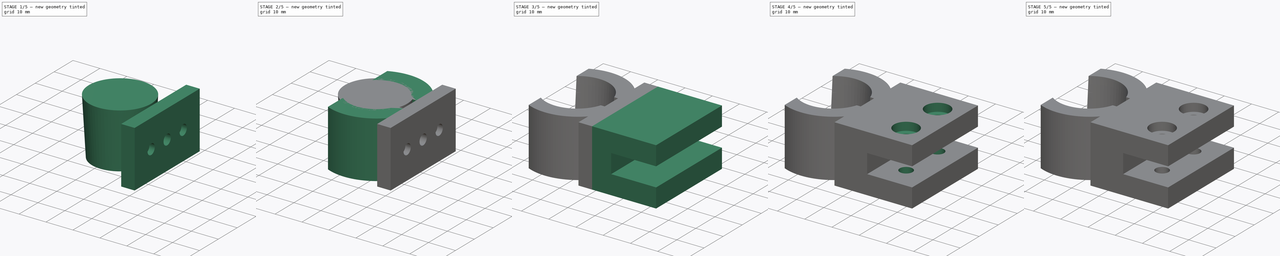
[diagram: build sequence overview — one tinted view per stage of 5, left to right]
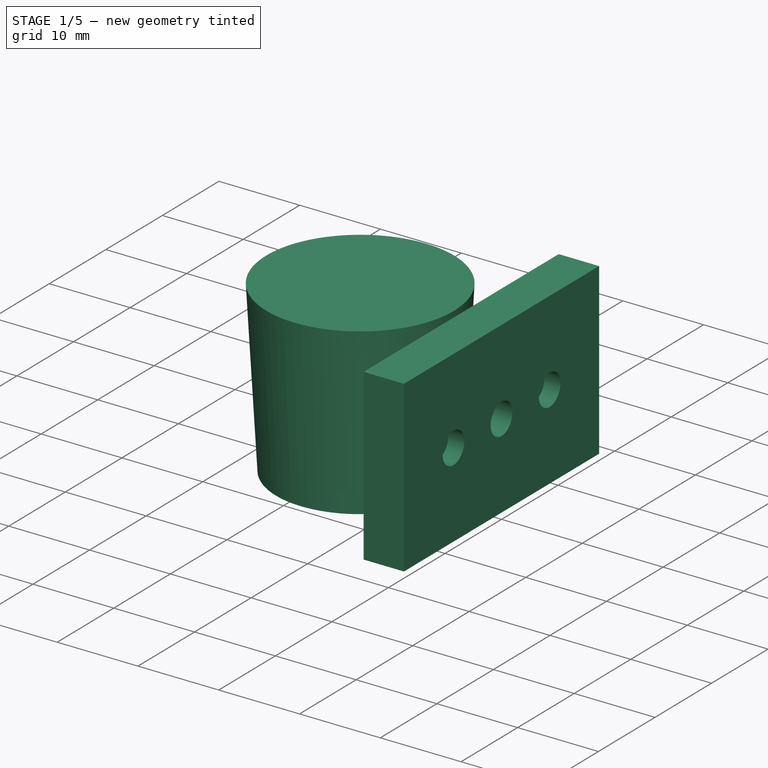
[diagram: stage 1 of 5 — iso view after this stage's code; geometry added in this stage tinted green]
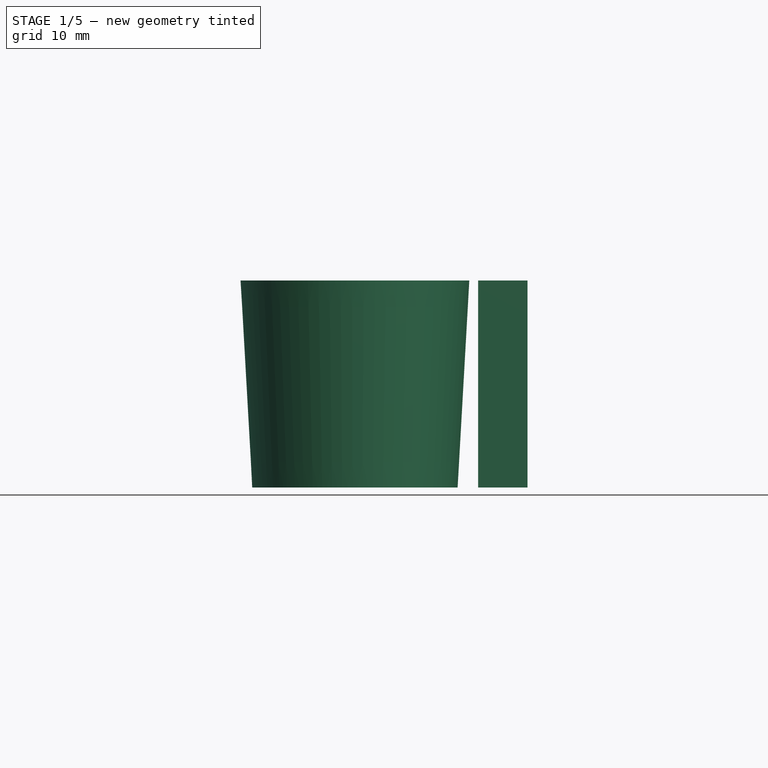
[diagram: stage 1 of 5 — front view after this stage's code; geometry added in this stage tinted green]
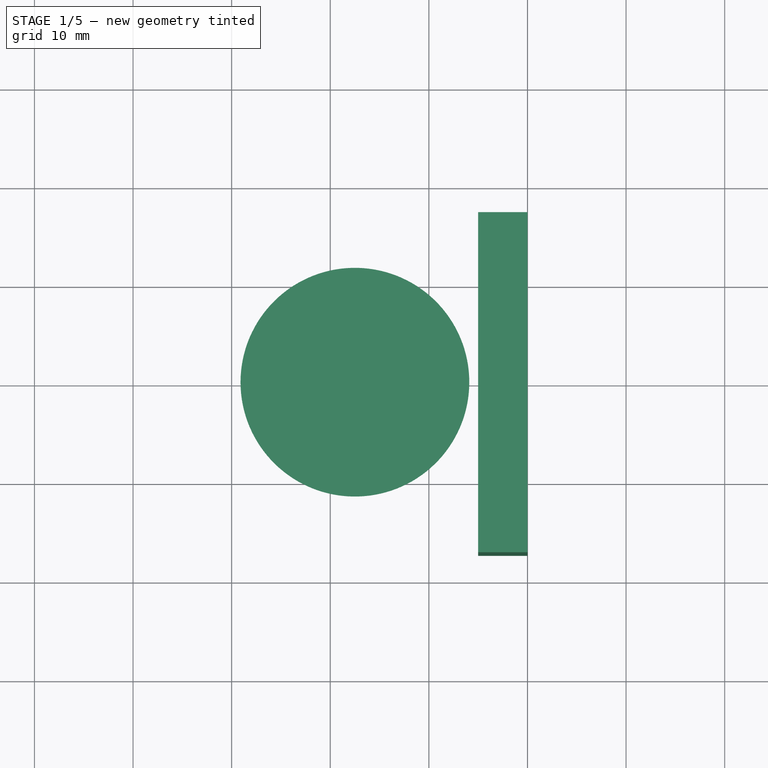
[diagram: stage 1 of 5 — top view after this stage's code; geometry added in this stage tinted green]
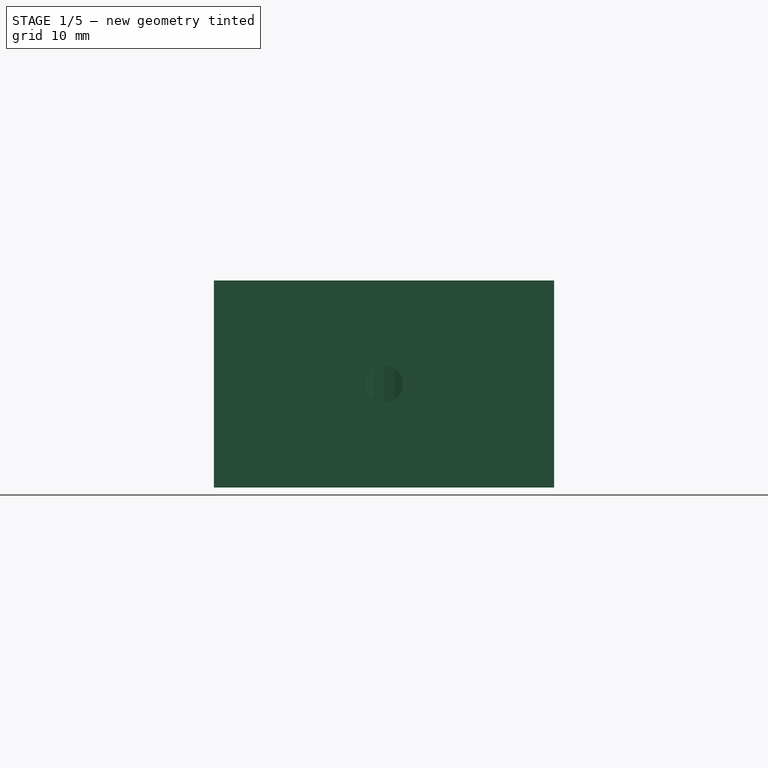
[diagram: stage 1 of 5 — right view after this stage's code; geometry added in this stage tinted green]
FCSTD DOCUMENT  (FreeCAD 0.16R)
Label: soporte ducha
License: All rights reserved
LicenseURL: http://en.wikipedia.org/wiki/All_rights_reserved
objects: Sketcher::SketchObject×13, PartDesign::Pocket×9, PartDesign::Pad×4, Part::Cone×1, Part::Cut×1
note: 41 computed .brp shape members not serialized (recipe doc carries the construction recipe); baked Part::Feature solids carry a one-line shape summary decoded from their .brp

FEATURE [Sketcher::SketchObject] Sketch007
  Placement = pos=(0,0,0) rot=(0.57735,0.57735,0.57735;2.0944rad)
  sketch-geometry (5):
    g0: LineSegment StartX=-17.25 StartY=0 StartZ=0 EndX=17.25 EndY=0 EndZ=0
    g1: LineSegment StartX=17.25 StartY=0 StartZ=0 EndX=17.25 EndY=21 EndZ=0
    g2: LineSegment StartX=17.25 StartY=21 StartZ=0 EndX=-17.25 EndY=21 EndZ=0
    g3: LineSegment StartX=-17.25 StartY=21 StartZ=0 EndX=-17.25 EndY=0 EndZ=0
    g4: Circle CenterX=0 CenterY=10.5 CenterZ=0 NormalX=0 NormalY=0 NormalZ=1 Radius=1.925
  constraints (15):
    c: Coincident(g0,g1)
    c: Coincident(g1,g2)
    c: Coincident(g2,g3)
    c: Coincident(g3,g0)
    c: Horizontal(g0)
    c: Horizontal(g2)
    c: Vertical(g1)
    c: Vertical(g3)
    c: PointOnObject(g0,g-1)
    c: DistanceX(g0,g0) = 34.5
    c: Symmetric(g0,g0,g-2)
    c: DistanceY(g0,g2) = 21
    c: PointOnObject(g4,g-2)
    c: DistanceY(g-1,g4) = 10.5
    c: Radius(g4) = 1.925
FEATURE [PartDesign::Pad] Pad001
  Length = 5
  Length2 = 100
  Placement = pos=(0,0,0) rot=(0.57735,0.57735,0.57735;2.0944rad)
  Reversed = true
  Sketch = -> Sketch007
  Type = 0
FEATURE [Sketcher::SketchObject] Sketch008
  Placement = pos=(0,0,0) rot=(0.57735,0.57735,0.57735;2.0944rad)
  Support = -> Pad001 [Face6]
  sketch-geometry (2):
    g0: Circle CenterX=-8.5 CenterY=10.5 CenterZ=0 NormalX=0 NormalY=0 NormalZ=1 Radius=1.925
    g1: Circle CenterX=8.5 CenterY=10.5 CenterZ=0 NormalX=0 NormalY=0 NormalZ=1 Radius=1.925
  constraints (5):
    c: Radius(g1) = 1.925
    c: Equal(g1,g0)
    c: Symmetric(g0,g1,g-2)
    c: DistanceX(g0,g1) = 17
    c: DistanceY(g-1,g0) = 10.5
FEATURE [PartDesign::Pocket] Pocket006
  Length = 2
  Placement = pos=(0,0,0) rot=(0.57735,0.57735,0.57735;2.0944rad)
  Sketch = -> Sketch008
  Type = 0
FEATURE [Part::Cone] Cone  label="Cono"
  Angle = 360
  Height = 21
  Placement = pos=(-17.5,0,0) rot=(0,0,1;0rad)
  Radius1 = 10.415
  Radius2 = 11.6
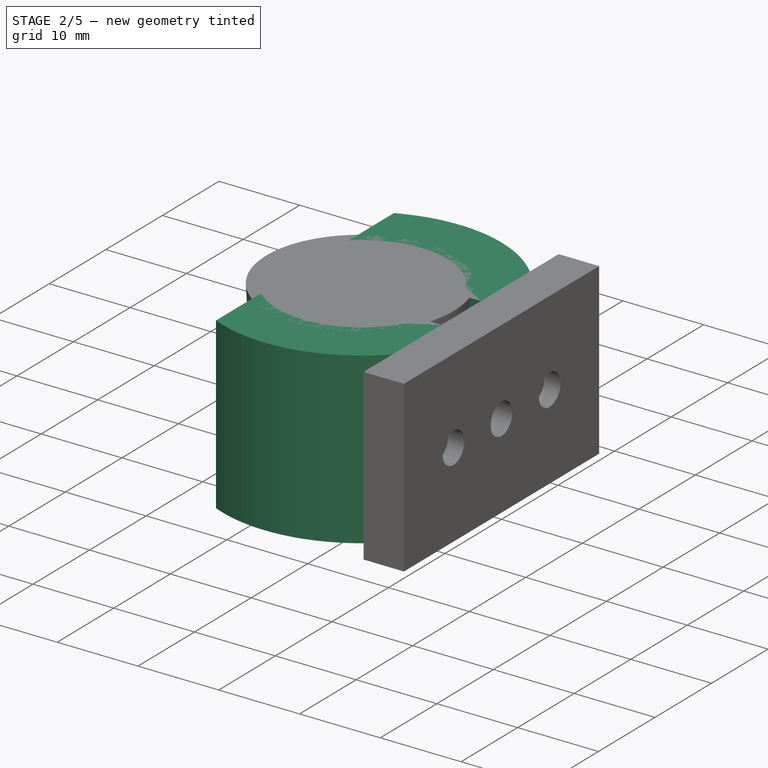
[diagram: stage 2 of 5 — iso view after this stage's code; geometry added in this stage tinted green]
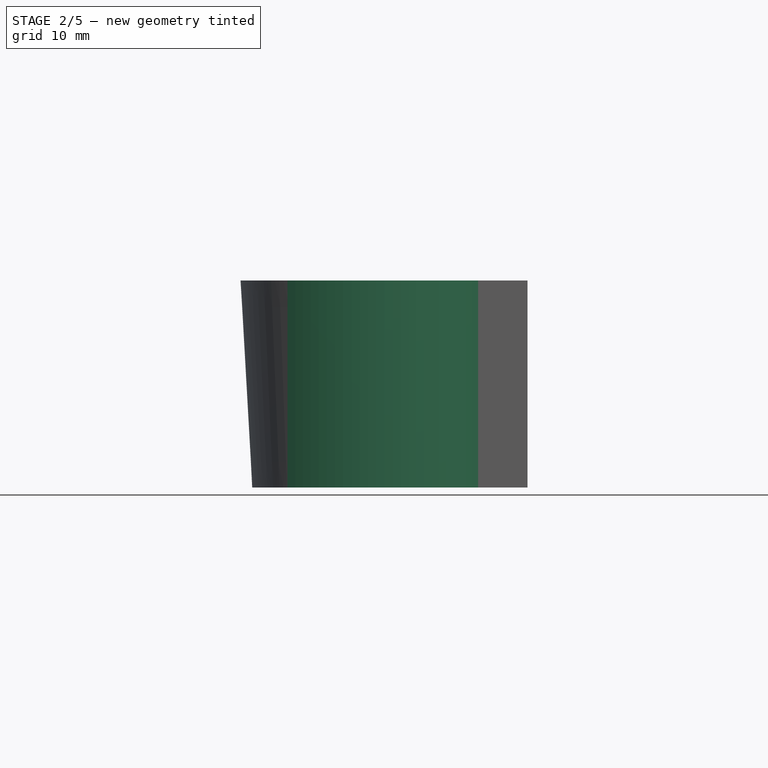
[diagram: stage 2 of 5 — front view after this stage's code; geometry added in this stage tinted green]
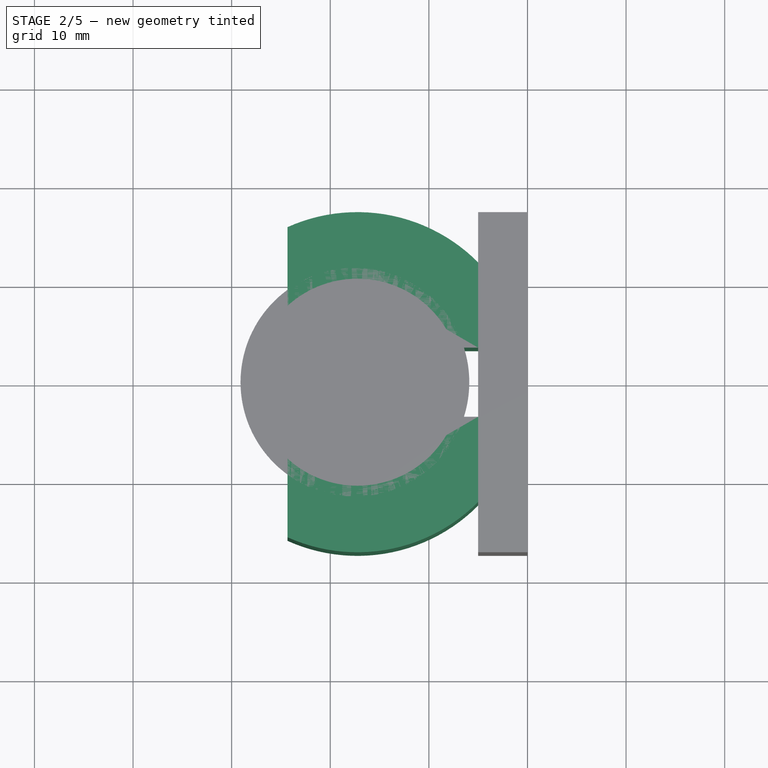
[diagram: stage 2 of 5 — top view after this stage's code; geometry added in this stage tinted green]
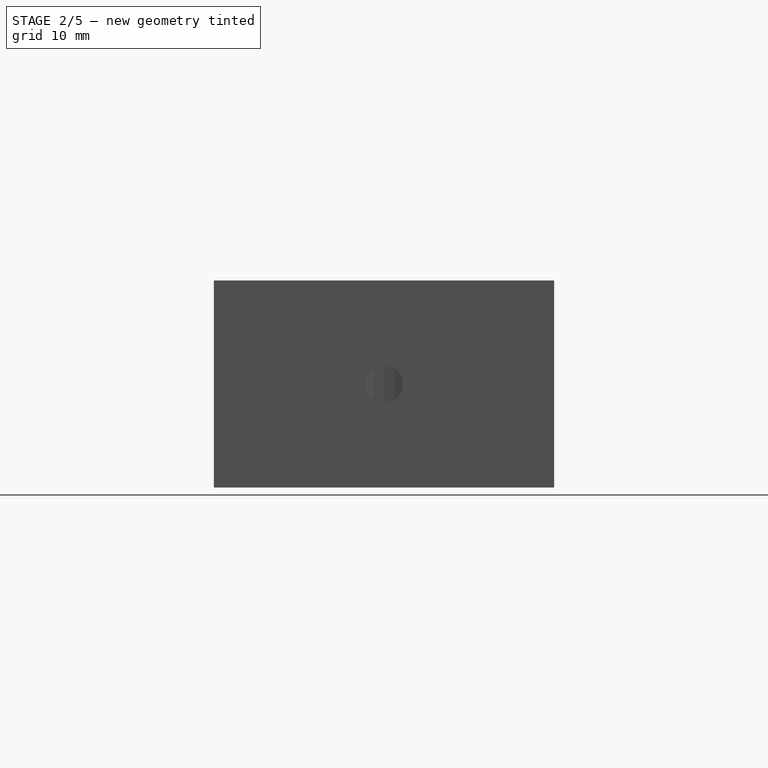
[diagram: stage 2 of 5 — right view after this stage's code; geometry added in this stage tinted green]
FEATURE [Sketcher::SketchObject] Sketch009
  Placement = pos=(0,0,21) rot=(0,0,-1;1.5708rad)
  Support = -> Pocket006 [Face6]
  sketch-geometry (8):
    g0: ArcOfCircle CenterX=0 CenterY=-17.25 CenterZ=0 NormalX=0 NormalY=0 NormalZ=1 Radius=17.25 StartAngle=5.85998 EndAngle=9.84799
    g1: ArcOfCircle CenterX=0 CenterY=-17.25 CenterZ=0 NormalX=0 NormalY=0 NormalZ=1 Radius=10.5 StartAngle=5.54263 EndAngle=7.51414
    g2: LineSegment StartX=-7.75 StartY=-24.3343 StartZ=0 EndX=-15.7281 EndY=-24.3345 EndZ=0
    g3: LineSegment StartX=7.75 StartY=-24.3343 StartZ=0 EndX=15.7282 EndY=-24.3343 EndZ=0
    g4: LineSegment StartX=3.5 StartY=-7.35051 StartZ=0 EndX=3.5 EndY=-4 EndZ=0
    g5: LineSegment StartX=3.5 StartY=-4 StartZ=0 EndX=-3.5 EndY=-4 EndZ=0
    g6: LineSegment StartX=-3.5 StartY=-4 StartZ=0 EndX=-3.5 EndY=-7.35051 EndZ=0
    g7: ArcOfCircle CenterX=0 CenterY=-17.25 CenterZ=0 NormalX=0 NormalY=0 NormalZ=1 Radius=10.5 StartAngle=1.91063 EndAngle=3.88215
  constraints (22):
    c: PointOnObject(g0,g-2)
    c: PointOnObject(g-1,g0)
    c: Radius(g0) = 17.25
    c: Coincident(g1,g0)
    c: Radius(g1) = 10.5
    c: Coincident(g2,g7)
    c: Coincident(g2,g0)
    c: Coincident(g3,g1)
    c: Coincident(g3,g0)
    c: Horizontal(g3)
    c: Coincident(g4,g5)
    c: Coincident(g5,g6)
    c: Horizontal(g5)
    c: Vertical(g4)
    c: Vertical(g6)
    c: Equal(g1,g7)
    c: Coincident(g1,g7)
    c: Coincident(g6,g7)
    c: Coincident(g4,g1)
    c: DistanceX(g5,g4) = 7
    c: Symmetric(g4,g5,g-2)
    c: DistanceY(g4,g-1) = 4
FEATURE [PartDesign::Pad] Pad002
  Length = 21
  Length2 = 100
  Placement = pos=(0,0,0) rot=(0.57735,0.57735,0.57735;2.0944rad)
  Reversed = true
  Sketch = -> Sketch009
  Type = 0
FEATURE [Sketcher::SketchObject] Sketch010
  ExternalGeometry = -> [Pad002]
  Placement = pos=(0,0,0) rot=(0.57735,0.57735,0.57735;2.0944rad)
  Support = -> Pad002 [Face18]
  sketch-geometry (2):
    g0: Circle CenterX=-8.5 CenterY=10.5 CenterZ=0 NormalX=0 NormalY=0 NormalZ=1 Radius=1.925
    g1: Circle CenterX=8.5 CenterY=10.5 CenterZ=0 NormalX=0 NormalY=0 NormalZ=1 Radius=1.925
  constraints (4):
    c: Coincident(g0,g-4)
    c: Coincident(g-3,g1)
    c: Equal(g-3,g1)
    c: Equal(g-4,g0)
FEATURE [PartDesign::Pocket] Pocket007
  Length = 2
  Placement = pos=(0,0,0) rot=(0.57735,0.57735,0.57735;2.0944rad)
  Sketch = -> Sketch010
  Type = 0
FEATURE [Sketcher::SketchObject] Sketch011
  ExternalGeometry = -> [Pocket007]
  Placement = pos=(0,0,0) rot=(0.57735,0.57735,0.57735;2.0944rad)
  Support = -> Pocket007 [Face4]
  sketch-geometry (1):
    g0: Circle CenterX=0 CenterY=10.5 CenterZ=0 NormalX=0 NormalY=0 NormalZ=1 Radius=1.925
  constraints (2):
    c: Coincident(g0,g-3)
    c: Equal(g-3,g0)
FEATURE [PartDesign::Pocket] Pocket008  label="Soporte Ducha Telefono"
  Length = 5
  Placement = pos=(0,0,0) rot=(0.57735,0.57735,0.57735;2.0944rad)
  Sketch = -> Sketch011
  Type = 1
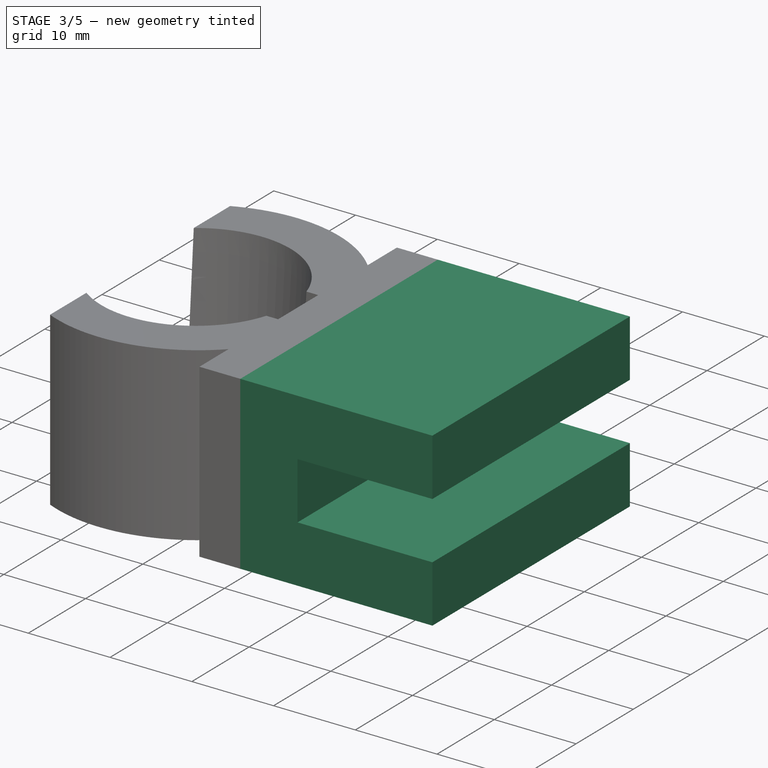
[diagram: stage 3 of 5 — iso view after this stage's code; geometry added in this stage tinted green]
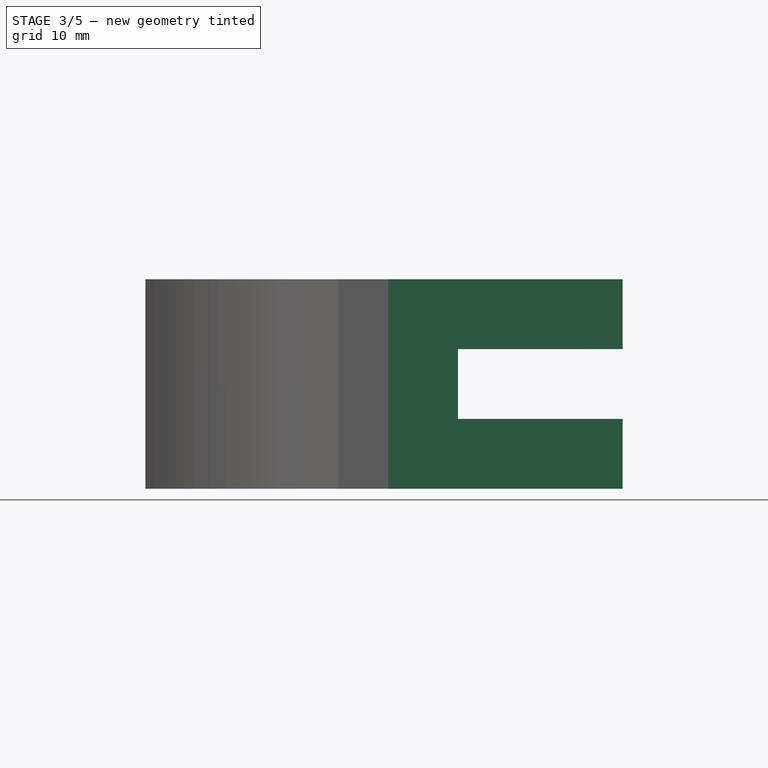
[diagram: stage 3 of 5 — front view after this stage's code; geometry added in this stage tinted green]
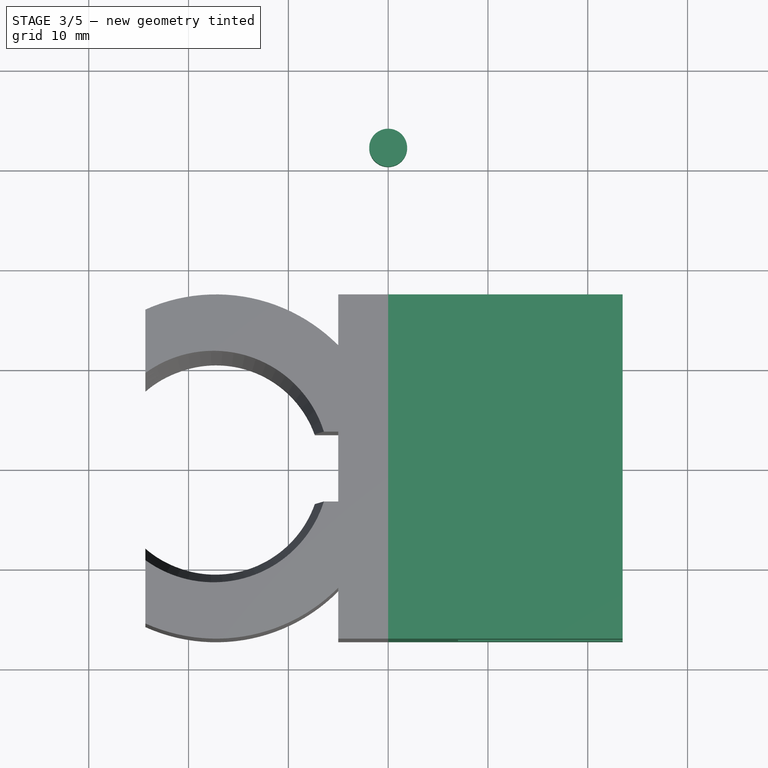
[diagram: stage 3 of 5 — top view after this stage's code; geometry added in this stage tinted green]
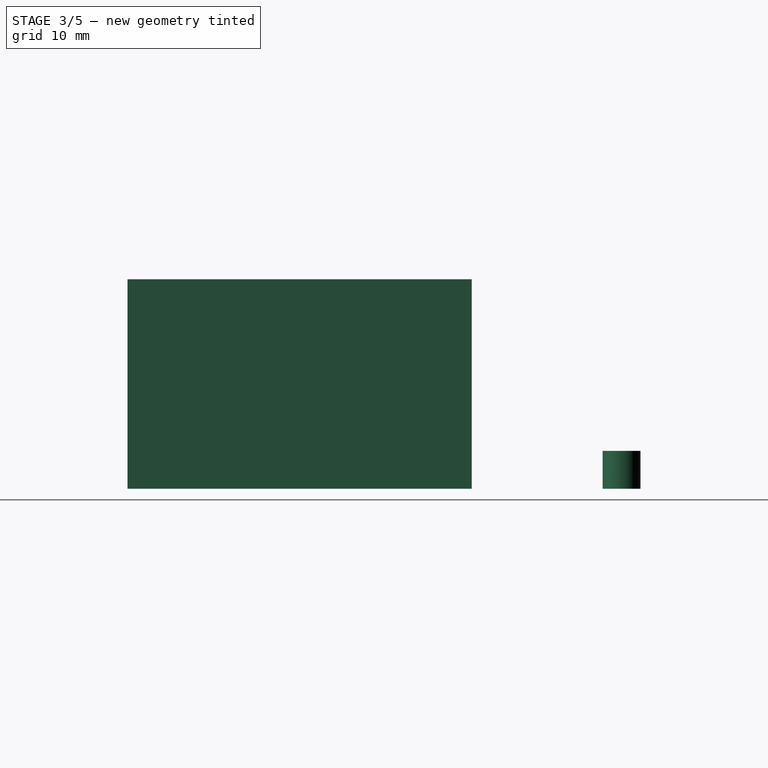
[diagram: stage 3 of 5 — right view after this stage's code; geometry added in this stage tinted green]
FEATURE [Sketcher::SketchObject] Sketch
  Placement = pos=(0,0,0) rot=(-1,0,0;4.71239rad)
  sketch-geometry (9):
    g0: LineSegment StartX=0 StartY=0 StartZ=0 EndX=23.5 EndY=0 EndZ=0
    g1: LineSegment StartX=23.5 StartY=0 StartZ=0 EndX=23.5 EndY=7 EndZ=0
    g2: LineSegment StartX=23.5 StartY=7 StartZ=0 EndX=7 EndY=7 EndZ=0
    g3: LineSegment StartX=7 StartY=7 StartZ=0 EndX=7 EndY=14 EndZ=0
    g4: LineSegment StartX=0 StartY=0 StartZ=0 EndX=0 EndY=21 EndZ=0
    g5: LineSegment StartX=0 StartY=21 StartZ=0 EndX=23.5 EndY=21 EndZ=0
    g6: LineSegment StartX=23.5 StartY=21 StartZ=0 EndX=23.5 EndY=14 EndZ=0
    g7: LineSegment StartX=23.5 StartY=14 StartZ=0 EndX=7 EndY=14 EndZ=0
    g8: LineSegment [constr] StartX=17.1683 StartY=21 StartZ=0 EndX=17.1683 EndY=3 EndZ=0
  constraints (26):
    c: Coincident(g-1,g0)
    c: PointOnObject(g0,g-1)
    c: Coincident(g0,g1)
    c: Coincident(g1,g2)
    c: Horizontal(g2)
    c: Coincident(g2,g3)
    c: Vertical(g3)
    c: Coincident(g-1,g4)
    c: Vertical(g4)
    c: Coincident(g4,g5)
    c: Horizontal(g5)
    c: Coincident(g5,g6)
    c: Vertical(g6)
    c: Coincident(g6,g7)
    c: Coincident(g3,g7)
    c: Horizontal(g7)
    c: DistanceX(g5,g5) = 23.5
    c: DistanceX(g4,g3) = 7
    c: Equal(g6,g1)
    c: DistanceY(g0,g1) = 7
    c: DistanceY(g-1,g4) = 21
    c: Equal(g5,g0)
    c: Vertical(g1)
    c: PointOnObject(g8,g5)
    c: Vertical(g8)
    c: DistanceY(g8,g8) = 18
FEATURE [PartDesign::Pad] Pad
  Length = 34.5
  Length2 = 100
  Midplane = true
  Placement = pos=(0,0,0) rot=(-1,0,0;4.71239rad)
  Sketch = -> Sketch
  Type = 0
FEATURE [Sketcher::SketchObject] Sketch012
  Placement = pos=(0,-10,0) rot=(0,0,1;0rad)
  sketch-geometry (1):
    g0: Circle CenterX=0 CenterY=42.257 CenterZ=0 NormalX=0 NormalY=0 NormalZ=1 Radius=1.9
  constraints (1):
    c: PointOnObject(g0,g-2)
FEATURE [PartDesign::Pad] Pad003  label="Pernos union"
  Length = 3.8
  Length2 = 100
  Placement = pos=(0,-10,0) rot=(0,0,1;0rad)
  Sketch = -> Sketch012
  Type = 0
FEATURE [Part::Cut] Cut  label="Soporte Ducha Telefono cono"
  Base = -> Pocket008
  Tool = -> Cone
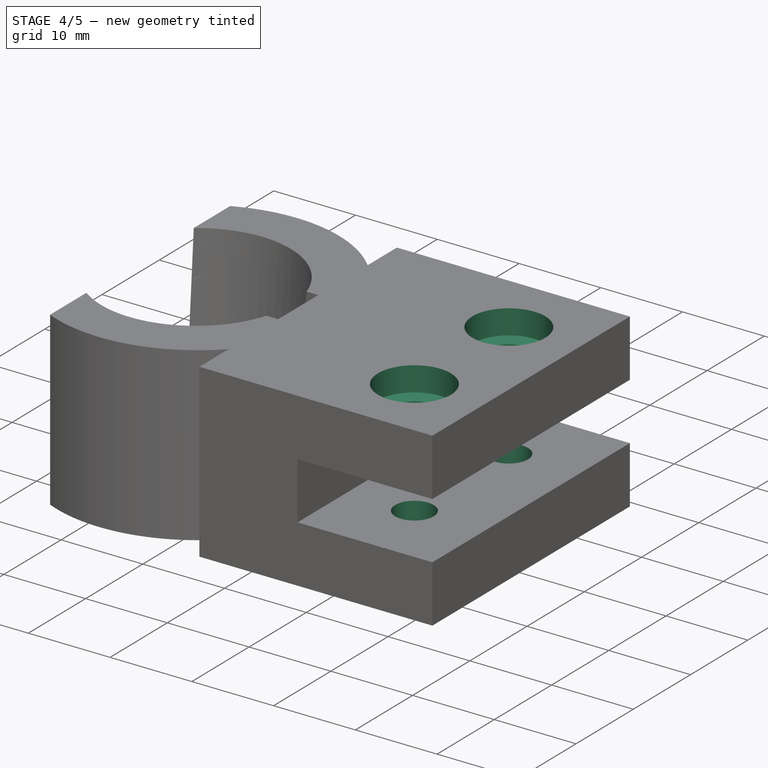
[diagram: stage 4 of 5 — iso view after this stage's code; geometry added in this stage tinted green]
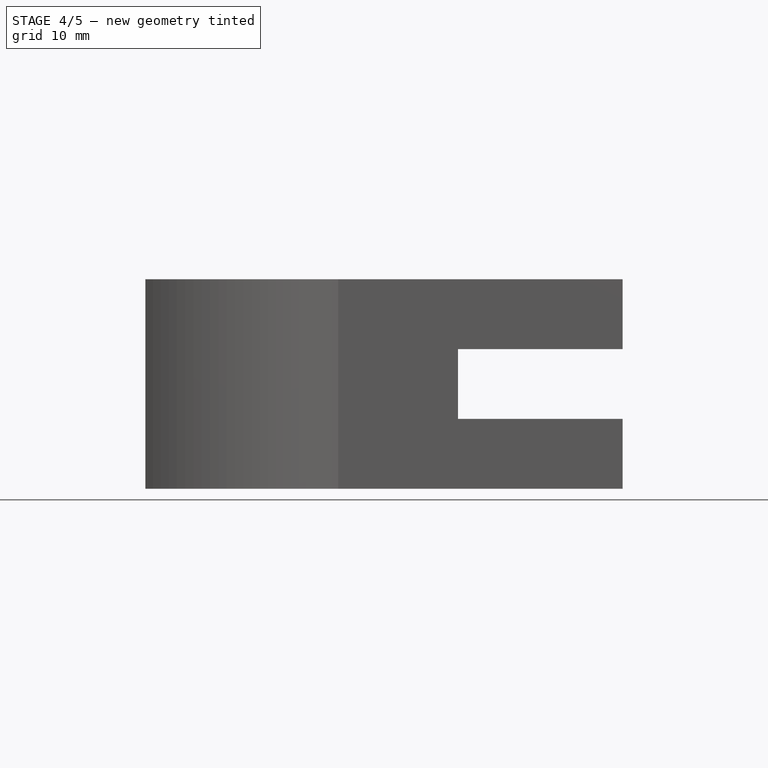
[diagram: stage 4 of 5 — front view after this stage's code; geometry added in this stage tinted green]
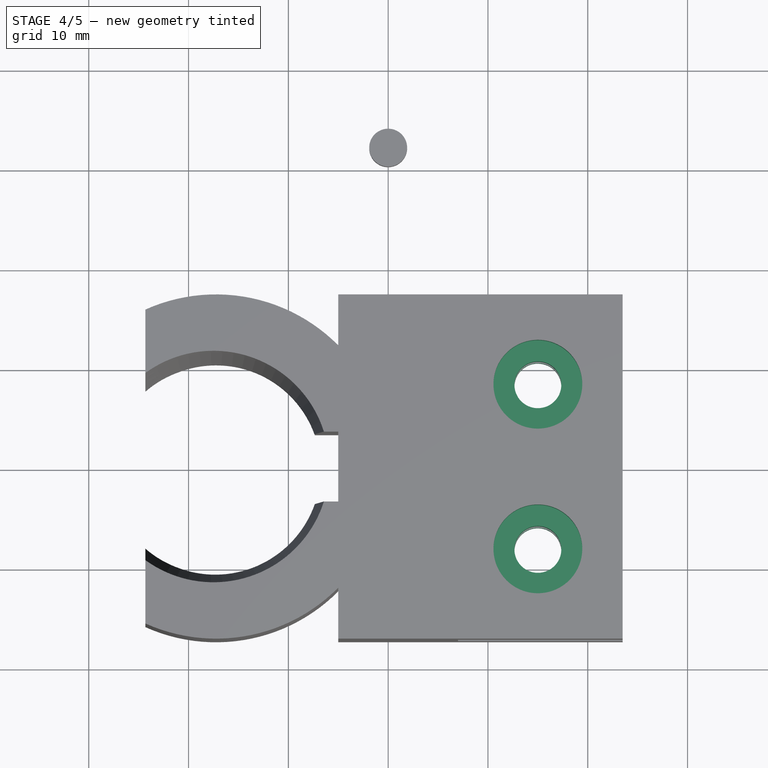
[diagram: stage 4 of 5 — top view after this stage's code; geometry added in this stage tinted green]
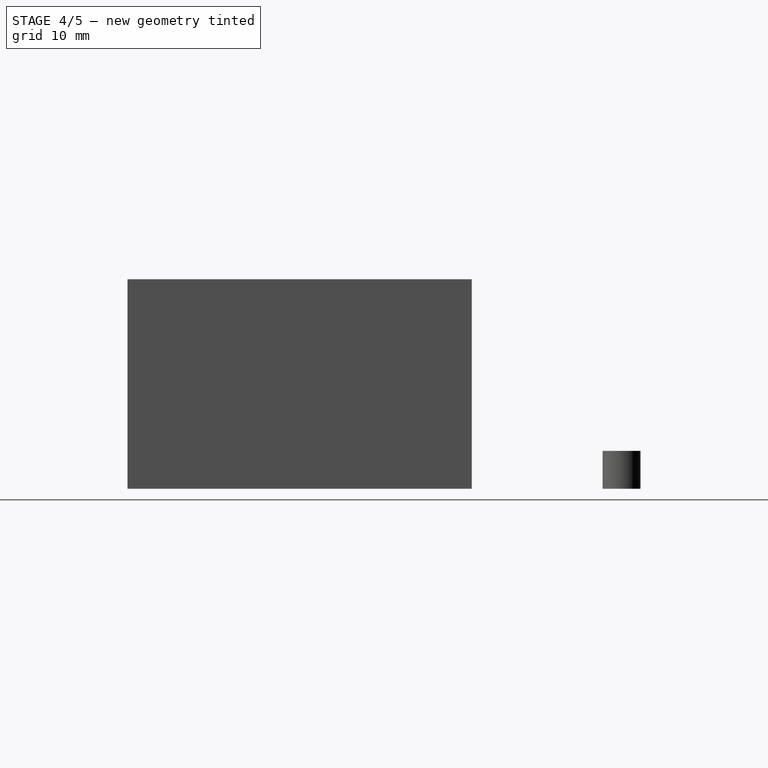
[diagram: stage 4 of 5 — right view after this stage's code; geometry added in this stage tinted green]
FEATURE [Sketcher::SketchObject] Sketch001
  ExternalGeometry = -> [Pad]
  Placement = pos=(0,0,21) rot=(0,0,1;3.14159rad)
  Support = -> Pad [Face7]
  sketch-geometry (2):
    g0: Circle CenterX=-15 CenterY=8.25 CenterZ=0 NormalX=0 NormalY=0 NormalZ=1 Radius=2.35
    g1: Circle CenterX=-15 CenterY=-8.25 CenterZ=0 NormalX=0 NormalY=0 NormalZ=1 Radius=2.35
  constraints (6):
    c: Radius(g0) = 2.35
    c: Equal(g0,g1)
    c: Symmetric(g0,g1,g-1)
    c: DistanceX(g-4,g-4) = 16.5
    c: DistanceX(g-3,g0) = 8.5
    c: DistanceY(g0,g-3) = 9
FEATURE [PartDesign::Pocket] Pocket
  Length = 5
  Placement = pos=(0,0,0) rot=(-1,0,0;4.71239rad)
  Sketch = -> Sketch001
  Type = 1
FEATURE [Sketcher::SketchObject] Sketch002
  ExternalGeometry = -> [Pocket]
  Placement = pos=(0,0,0) rot=(1,0,0;3.14159rad)
  Support = -> Pocket [Face1]
  sketch-geometry (14):
    g0: LineSegment StartX=15 StartY=12.75 StartZ=0 EndX=11.1029 EndY=10.5 EndZ=0
    g1: LineSegment StartX=11.1029 StartY=10.5 StartZ=0 EndX=11.1029 EndY=6 EndZ=0
    g2: LineSegment StartX=11.1029 StartY=6 StartZ=0 EndX=15 EndY=3.75 EndZ=0
    g3: LineSegment StartX=15 StartY=3.75 StartZ=0 EndX=18.8971 EndY=6 EndZ=0
    g4: LineSegment StartX=18.8971 StartY=6 StartZ=0 EndX=18.8971 EndY=10.5 EndZ=0
    g5: LineSegment StartX=18.8971 StartY=10.5 StartZ=0 EndX=15 EndY=12.75 EndZ=0
    g6: Circle [constr] CenterX=15 CenterY=8.25 CenterZ=0 NormalX=0 NormalY=0 NormalZ=1 Radius=4.5
    g7: LineSegment StartX=15 StartY=-3.75 StartZ=0 EndX=11.1029 EndY=-6 EndZ=0
    g8: LineSegment StartX=11.1029 StartY=-6 StartZ=0 EndX=11.1029 EndY=-10.5 EndZ=0
    g9: LineSegment StartX=11.1029 StartY=-10.5 StartZ=0 EndX=15 EndY=-12.75 EndZ=0
    g10: LineSegment StartX=15 StartY=-12.75 StartZ=0 EndX=18.8971 EndY=-10.5 EndZ=0
    g11: LineSegment StartX=18.8971 StartY=-10.5 StartZ=0 EndX=18.8971 EndY=-6 EndZ=0
    g12: LineSegment StartX=18.8971 StartY=-6 StartZ=0 EndX=15 EndY=-3.75 EndZ=0
    g13: Circle [constr] CenterX=15 CenterY=-8.25 CenterZ=0 NormalX=0 NormalY=0 NormalZ=1 Radius=4.5
  constraints (32):
    c: Coincident(g0,g1)
    c: Coincident(g1,g2)
    c: Coincident(g2,g3)
    c: Coincident(g3,g4)
    c: Coincident(g4,g5)
    c: Coincident(g5,g0)
    c: Equal(g0, g1-g5) x5
    c: PointOnObject(g0,g6)
    c: PointOnObject(g1,g6)
    c: PointOnObject(g2,g6)
    c: PointOnObject(g3,g6)
    c: PointOnObject(g4,g6)
    c: PointOnObject(g5,g6)
    c: Coincident(g6,g-3)
    c: Coincident(g7,g8)
    c: Coincident(g8,g9)
    c: Coincident(g9,g10)
    c: Coincident(g10,g11)
    c: Coincident(g11,g12)
    c: Coincident(g12,g7)
    c: Equal(g7, g8-g12) x5
    c: PointOnObject(g7,g13)
    c: PointOnObject(g8,g13)
    c: PointOnObject(g9,g13)
    c: PointOnObject(g10,g13)
    c: PointOnObject(g11,g13)
    c: PointOnObject(g12,g13)
    c: Coincident(g13,g-4)
    c: Equal(g13,g6)
    c: Radius(g13) = 4.5
    c: Parallel(g8,g-2)
    c: Parallel(g1,g-2)
FEATURE [PartDesign::Pocket] Pocket001
  Length = 3.9
  Placement = pos=(0,0,0) rot=(-1,0,0;4.71239rad)
  Sketch = -> Sketch002
  Type = 0
FEATURE [Sketcher::SketchObject] Sketch003
  ExternalGeometry = -> [Pocket001]
  Placement = pos=(0,0,21) rot=(0,0,1;3.14159rad)
  Support = -> Pocket001 [Face18]
  sketch-geometry (2):
    g0: Circle CenterX=-15 CenterY=8.25 CenterZ=0 NormalX=0 NormalY=0 NormalZ=1 Radius=4.45
    g1: Circle CenterX=-15 CenterY=-8.25 CenterZ=0 NormalX=0 NormalY=0 NormalZ=1 Radius=4.45
  constraints (4):
    c: Coincident(g0,g-3)
    c: Coincident(g1,g-4)
    c: Radius(g1) = 4.45
    c: Equal(g1,g0)
FEATURE [PartDesign::Pocket] Pocket002
  Length = 3
  Placement = pos=(0,0,0) rot=(-1,0,0;4.71239rad)
  Sketch = -> Sketch003
  Type = 0
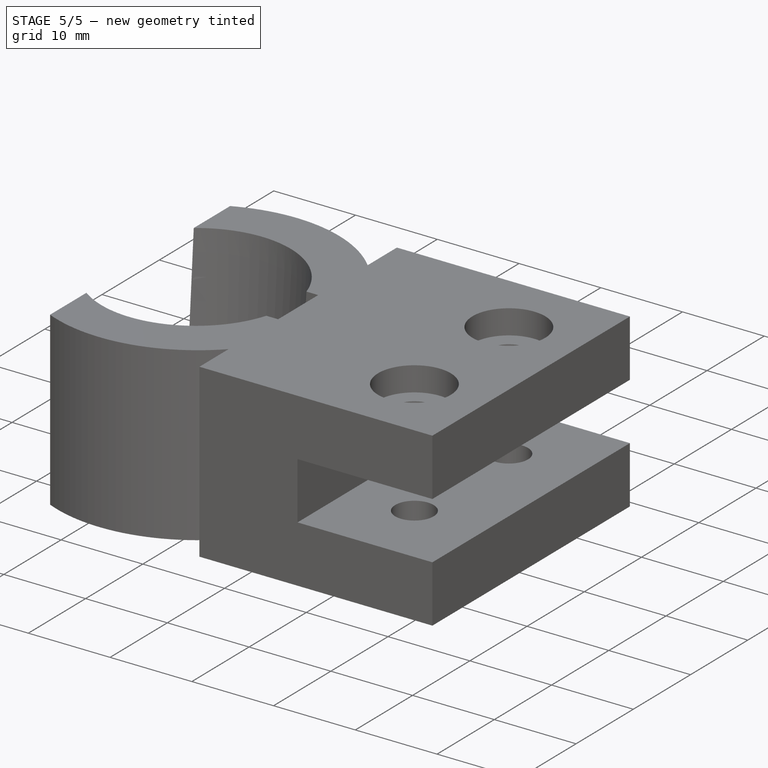
[diagram: stage 5 of 5 — iso view after this stage's code; geometry added in this stage tinted green]
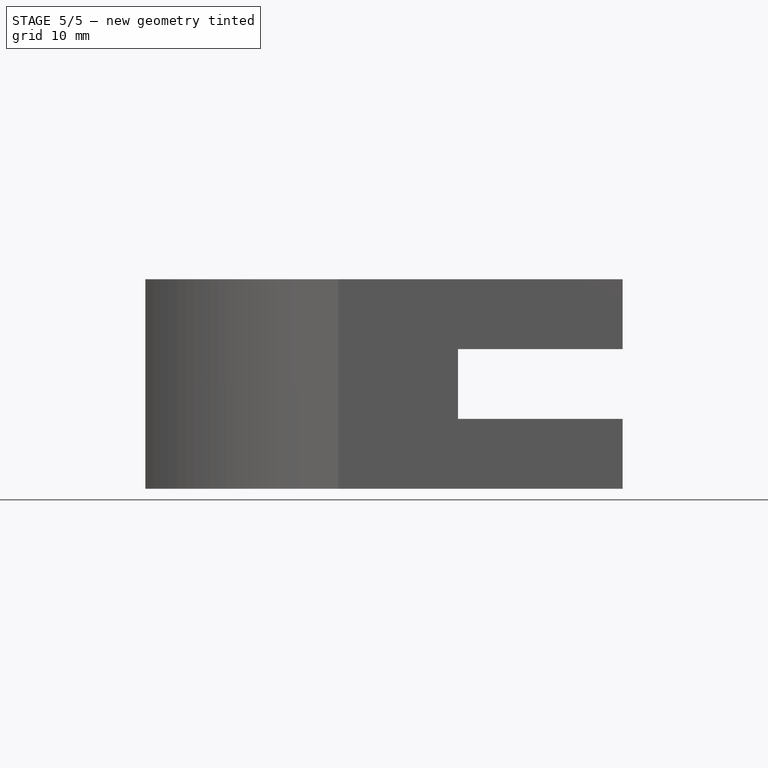
[diagram: stage 5 of 5 — front view after this stage's code; geometry added in this stage tinted green]
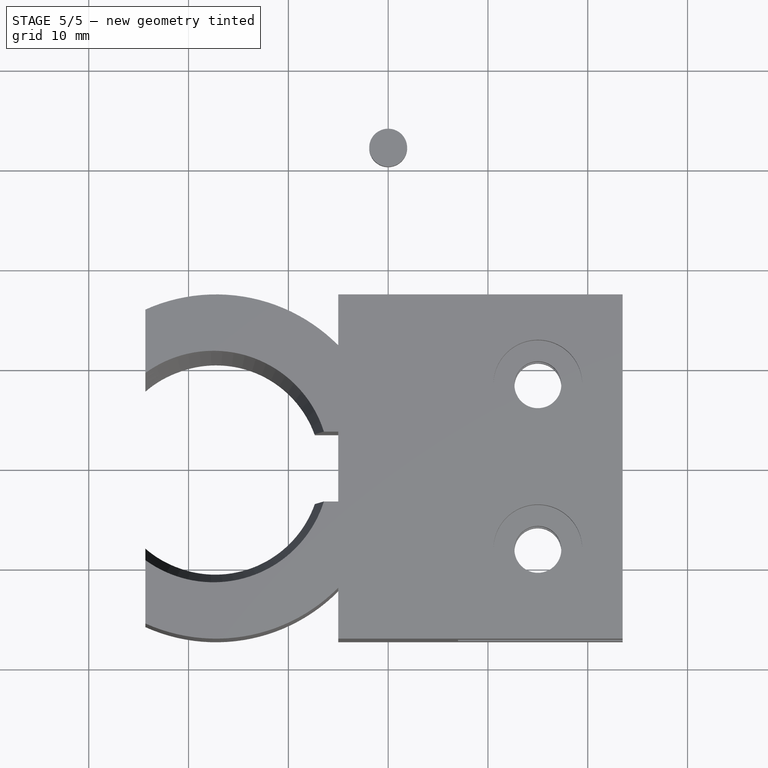
[diagram: stage 5 of 5 — top view after this stage's code; geometry added in this stage tinted green]
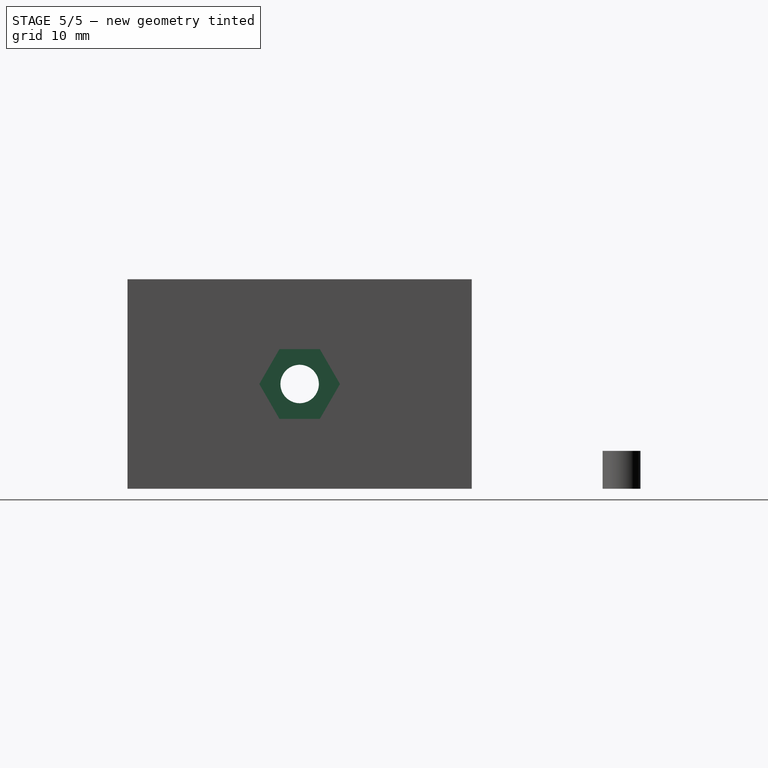
[diagram: stage 5 of 5 — right view after this stage's code; geometry added in this stage tinted green]
FEATURE [Sketcher::SketchObject] Sketch004
  ExternalGeometry = -> [Pocket002]
  Placement = pos=(0,0,0) rot=(0.707107,0,-0.707107;3.14159rad)
  Support = -> Pocket002 [Face2]
  sketch-geometry (1):
    g0: Circle CenterX=-10.5 CenterY=0 CenterZ=0 NormalX=0 NormalY=0 NormalZ=1 Radius=1.925
  constraints (2):
    c: Radius(g0) = 1.925
    c: PointOnObject(g0,g-1)
FEATURE [PartDesign::Pocket] Pocket003
  Length = 7
  Placement = pos=(0,0,0) rot=(-1,0,0;4.71239rad)
  Sketch = -> Sketch004
  Type = 1
FEATURE [Sketcher::SketchObject] Sketch005
  ExternalGeometry = -> [Pocket003]
  Placement = pos=(7,0,0) rot=(0.707107,0,0.707107;3.14159rad)
  Support = -> Pocket003 [Face21]
  sketch-geometry (7):
    g0: LineSegment StartX=7 StartY=2.02073 StartZ=0 EndX=7 EndY=-2.02073 EndZ=0
    g1: LineSegment StartX=7 StartY=-2.02073 StartZ=0 EndX=10.5 EndY=-4.04145 EndZ=0
    g2: LineSegment StartX=10.5 StartY=-4.04145 StartZ=0 EndX=14 EndY=-2.02073 EndZ=0
    g3: LineSegment StartX=14 StartY=-2.02073 StartZ=0 EndX=14 EndY=2.02073 EndZ=0
    g4: LineSegment StartX=14 StartY=2.02073 StartZ=0 EndX=10.5 EndY=4.04145 EndZ=0
    g5: LineSegment StartX=10.5 StartY=4.04145 StartZ=0 EndX=7 EndY=2.02073 EndZ=0
    g6: Circle [constr] CenterX=10.5 CenterY=0 CenterZ=0 NormalX=0 NormalY=0 NormalZ=1 Radius=4.04145
  constraints (17):
    c: Coincident(g0,g1)
    c: Coincident(g1,g2)
    c: Coincident(g2,g3)
    c: Coincident(g3,g4)
    c: Coincident(g4,g5)
    c: Coincident(g5,g0)
    c: Equal(g0, g1-g5) x5
    c: PointOnObject(g0,g6)
    c: PointOnObject(g1,g6)
    c: PointOnObject(g2,g6)
    c: PointOnObject(g3,g6)
    c: PointOnObject(g4,g6)
    c: PointOnObject(g5,g6)
    c: PointOnObject(g6,g-1)
    c: Coincident(g6,g-3)
    c: Parallel(g0,g-4)
    c: DistanceX(g0,g2) = 7
FEATURE [PartDesign::Pocket] Pocket004
  Length = 3
  Placement = pos=(0,0,0) rot=(-1,0,0;4.71239rad)
  Sketch = -> Sketch005
  Type = 0
FEATURE [Sketcher::SketchObject] Sketch006
  ExternalGeometry = -> [Pocket004]
  Placement = pos=(0,0,0) rot=(0.707107,0,-0.707107;3.14159rad)
  Support = -> Pocket004 [Face2]
  sketch-geometry (2):
    g0: Circle CenterX=-10.5 CenterY=-8.5 CenterZ=0 NormalX=0 NormalY=0 NormalZ=1 Radius=1.925
    g1: Circle CenterX=-10.5 CenterY=8.5 CenterZ=0 NormalX=0 NormalY=0 NormalZ=1 Radius=1.925
  constraints (7):
    c: Radius(g-3) = 1.925
    c: Radius(g1) = 1.925
    c: Equal(g1,g0)
    c: Symmetric(g0,g1,g-1)
    c: DistanceX(g-3,g-1) = 10.5
    c: DistanceX(g1,g-1) = 10.5
    c: DistanceY(g0,g1) = 17
FEATURE [PartDesign::Pocket] Pocket005  label="Soporte Ducha Estanteria"
  Length = 2
  Placement = pos=(0,0,0) rot=(-1,0,0;4.71239rad)
  Sketch = -> Sketch006
  Type = 0
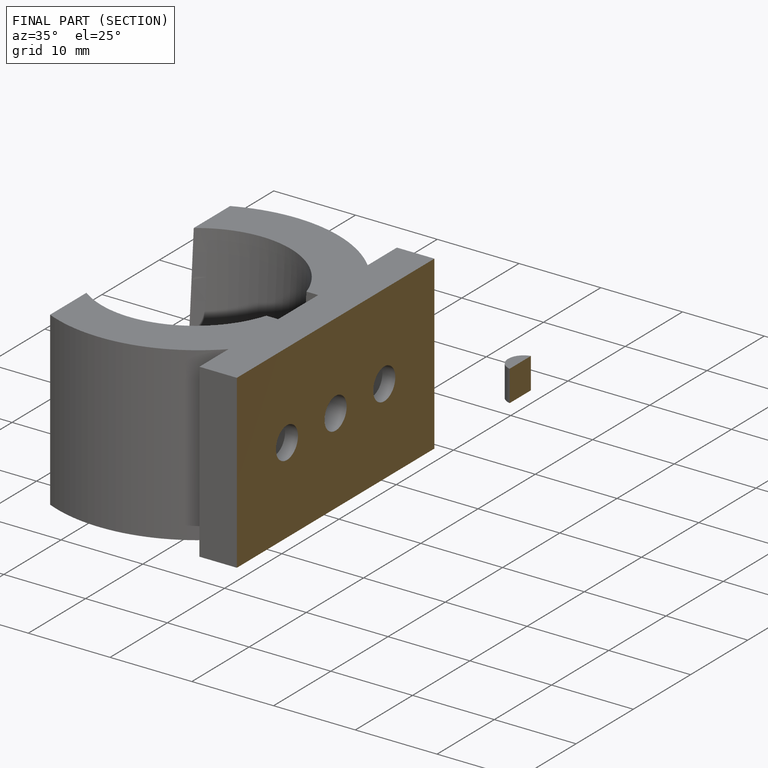
[diagram: finished part — half-section view (interior)]
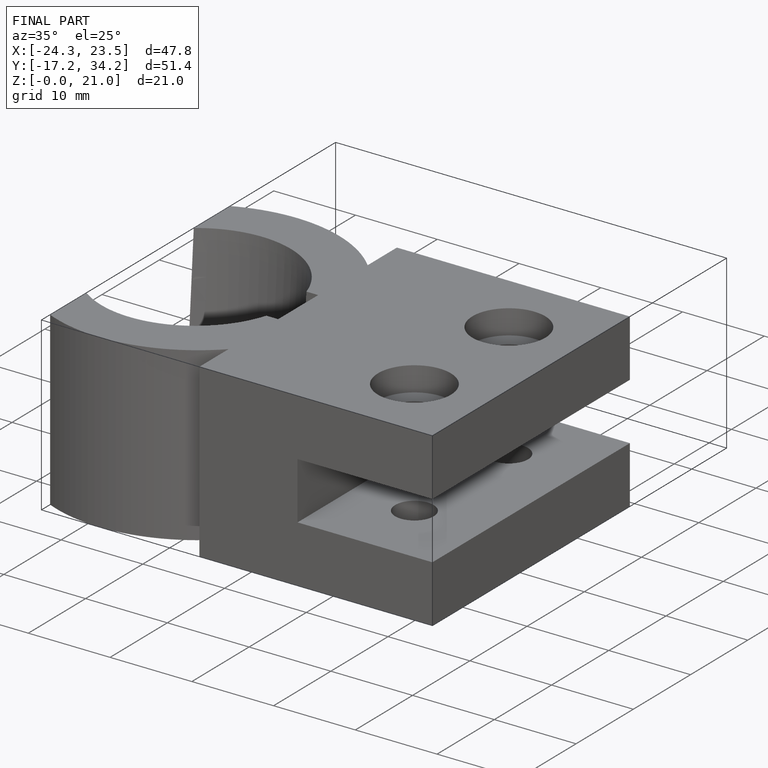
[diagram: finished part — iso view with bounding-box wireframe]
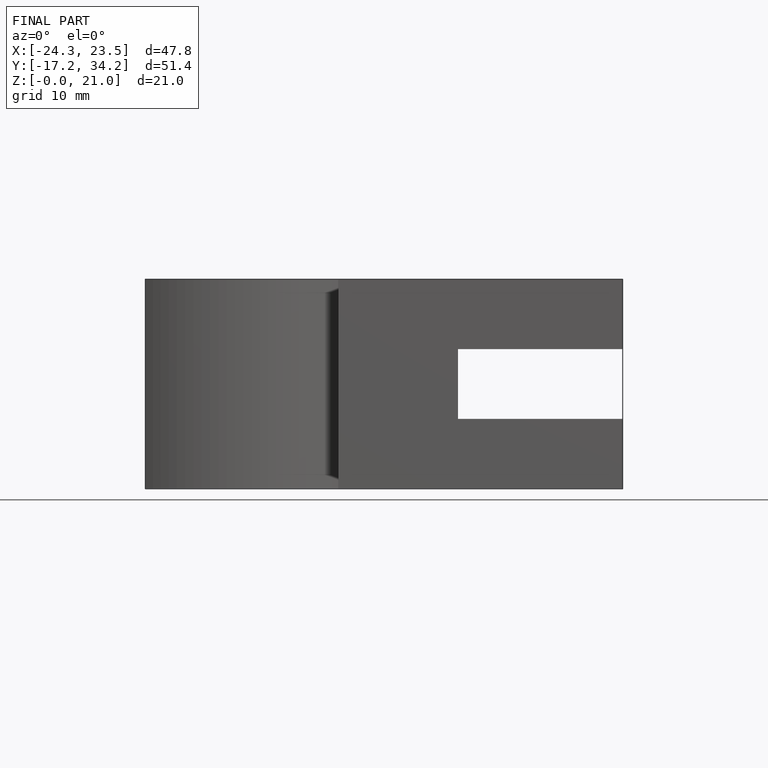
[diagram: finished part — front view with bounding-box wireframe]
